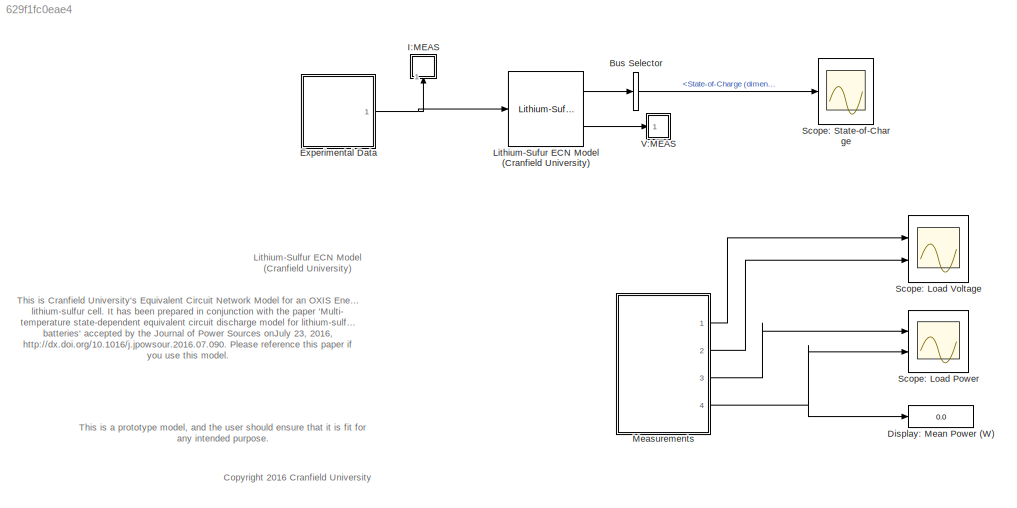
MODEL slx_629f1fc0eae4
KIND model
CONFIG AbsTol = auto
CONFIG FixedStep = Ts
CONFIG MaxStep = auto
CONFIG MinStep = auto
CONFIG PreLoadFcn = Ts = 1;\nload cudemo_LiS_ECN_Model_nedc_BOP_2A
CONFIG RelTol = 1e-3
CONFIG SampleTimeConstraint = Unconstrained
CONFIG Solver = ode3
CONFIG SolverMode = Auto
CONFIG SolverName = ode3
CONFIG StartTime = 0.0
CONFIG StopTime = STOP_TIME
BLOCK [BusSelector] Bus Selector
  OutputSignals = State-of-Charge (dimensionless)
  Ports = [1, 1]
BLOCK [Display] Display: Mean Power (W)
  Decimation = 1
  Ports = [1]
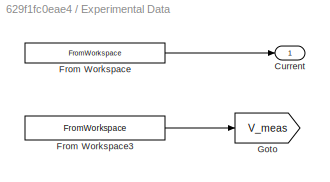
BLOCK [SubSystem] Experimental Data
  Ports = [0, 1]
  RequestExecContextInheritance = off
  Variant = off
BLOCK [Outport] Experimental Data/Current
  IconDisplay = Port number
  PortDimensions = 1
  SampleTime = Ts
BLOCK [FromWorkspace] Experimental Data/From Workspace
  OutputAfterFinalValue = Setting to zero
  SampleTime = Ts
  VariableName = I_nedc_BOP_2A
  ZeroCross = on
BLOCK [FromWorkspace] Experimental Data/From Workspace3
  OutputAfterFinalValue = Holding final value
  SampleTime = Ts
  VariableName = V_nedc_BOP_2A
  ZeroCross = on
BLOCK [Goto] Experimental Data/Goto
  GotoTag = V_meas
  TagVisibility = global
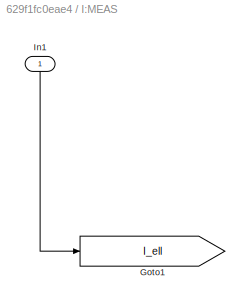
BLOCK [SubSystem] I:MEAS
  Ports = [1]
  RequestExecContextInheritance = off
  Variant = off
BLOCK [Goto] I:MEAS/Goto1
  GotoTag = I_ell
  TagVisibility = global
BLOCK [Inport] I:MEAS/In1
  IconDisplay = Port number
BLOCK [Reference] Lithium-Sufur ECN Model (Cranfield University)  REF=LiS_ECN_Model_lib/Lithium-Sufur ECN Model
(Cranfield University)
  AttributesFormatString = Temperature = %<TempDegC> deg C\nInitial SoC = %<InitialSoC>
  Ports = [1, 2]
  SourceBlock = LiS_ECN_Model_lib/Lithium-Sufur ECN Model\n(Cranfield University)
  SourceType = Lithium-Sulfur ECN Model (Cranfield University)
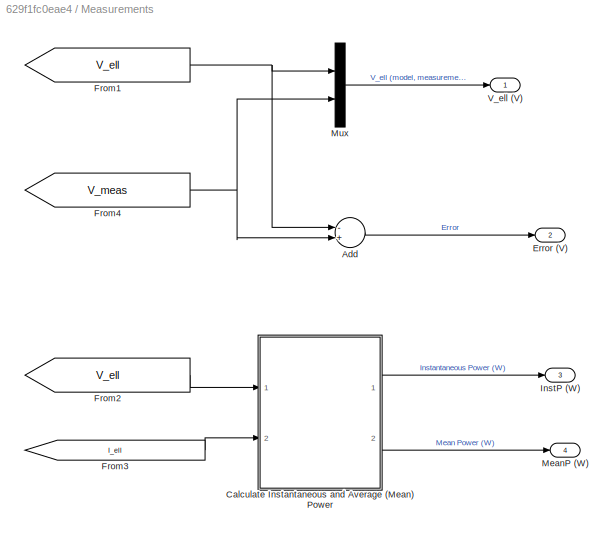
BLOCK [SubSystem] Measurements
  Ports = [0, 4]
  RequestExecContextInheritance = off
  Variant = off
BLOCK [Sum] Measurements/Add
  InputSameDT = off
  Inputs = -+
  OutDataTypeStr = Inherit: Inherit via internal rule
  Ports = [2, 1]
  SaturateOnIntegerOverflow = off
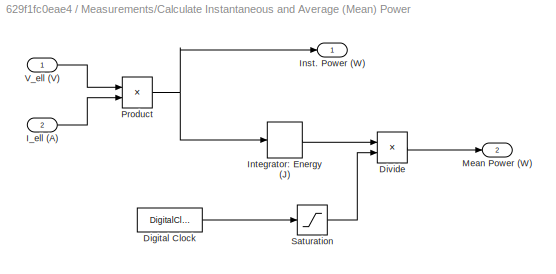
BLOCK [SubSystem] Measurements/Calculate Instantaneous and Average (Mean) Power
  Ports = [2, 2]
  RequestExecContextInheritance = off
  Variant = off
BLOCK [DigitalClock] Measurements/Calculate Instantaneous and Average (Mean) Power/Digital Clock
  SampleTime = Ts
BLOCK [Product] Measurements/Calculate Instantaneous and Average (Mean) Power/Divide
  InputSameDT = off
  Inputs = */
  OutDataTypeStr = Inherit: Inherit via internal rule
  Ports = [2, 1]
  RndMeth = Floor
  SaturateOnIntegerOverflow = off
BLOCK [Inport] Measurements/Calculate Instantaneous and Average (Mean) Power/I_ell (A)
  IconDisplay = Port number
  Port = 2
  PortDimensions = 1
  SampleTime = Ts
BLOCK [Outport] Measurements/Calculate Instantaneous and Average (Mean) Power/Inst. Power (W)
  IconDisplay = Port number
BLOCK [DiscreteIntegrator] Measurements/Calculate Instantaneous and Average (Mean) Power/Integrator: Energy (J)
  ICPrevOutput = DiscIntNeverNeededParam
  ICPrevScaledInput = DiscIntNeverNeededParam
  InitialConditionSetting = State (most efficient)
  Ports = [1, 1]
  SampleTime = Ts
BLOCK [Outport] Measurements/Calculate Instantaneous and Average (Mean) Power/Mean Power (W)
  IconDisplay = Port number
  Port = 2
BLOCK [Product] Measurements/Calculate Instantaneous and Average (Mean) Power/Product
  InputSameDT = off
  OutDataTypeStr = Inherit: Inherit via internal rule
  Ports = [2, 1]
  RndMeth = Floor
  SaturateOnIntegerOverflow = off
BLOCK [Saturate] Measurements/Calculate Instantaneous and Average (Mean) Power/Saturation
  InputPortMap = u0
  LowerLimit = Ts
  Ports = [1, 1]
  UpperLimit = inf
BLOCK [Inport] Measurements/Calculate Instantaneous and Average (Mean) Power/V_ell (V)
  IconDisplay = Port number
  PortDimensions = 1
  SampleTime = Ts
BLOCK [Outport] Measurements/Error (V)
  IconDisplay = Port number
  Port = 2
BLOCK [From] Measurements/From1
  GotoTag = V_ell
  TagVisibility = global
BLOCK [From] Measurements/From2
  GotoTag = V_ell
  TagVisibility = global
BLOCK [From] Measurements/From3
  GotoTag = I_ell
  TagVisibility = global
BLOCK [From] Measurements/From4
  GotoTag = V_meas
  TagVisibility = global
BLOCK [Outport] Measurements/InstP (W)
  IconDisplay = Port number
  Port = 3
BLOCK [Outport] Measurements/MeanP (W)
  IconDisplay = Port number
  Port = 4
BLOCK [Mux] Measurements/Mux
  DisplayOption = bar
  Inputs = 2
  Ports = [2, 1]
BLOCK [Outport] Measurements/V_ell (V)
  IconDisplay = Port number
BLOCK [Scope] Scope: Load Power
  NumInputPorts = 2
  Ports = [2]
  ScopeSpecificationString = Simulink.scopes.TimeScopeBlockCfg('CurrentConfiguration', extmgr.ConfigurationSet(extmgr.Configuration('Core','General UI',true,'FigureColor',[0.941176470588235 0.941176470588235 0.941176470588235]),extmgr.Configuration('Core','Source UI',true),extmgr.Configuration('Sources','WiredSimulink',true,'DataLoggingVariableName','ScopeData3','DataLoggingSaveFormat','StructureWithTime','DataLoggingDecimati...<+2823ch>
BLOCK [Scope] Scope: Load Voltage
  NumInputPorts = 2
  Ports = [2]
  ScopeSpecificationString = Simulink.scopes.TimeScopeBlockCfg('CurrentConfiguration', extmgr.ConfigurationSet(extmgr.Configuration('Core','General UI',true,'FigureColor',[0.941176470588235 0.941176470588235 0.941176470588235]),extmgr.Configuration('Core','Source UI',true),extmgr.Configuration('Sources','WiredSimulink',true,'DataLoggingVariableName','ScopeData1','DataLoggingSaveFormat','StructureWithTime','DataLoggingDecimati...<+2873ch>
BLOCK [Scope] Scope: State-of-Charge
  Ports = [1]
  ScopeSpecificationString = Simulink.scopes.TimeScopeBlockCfg('CurrentConfiguration', extmgr.ConfigurationSet(extmgr.Configuration('Core','General UI',true,'FigureColor',[0.941176470588235 0.941176470588235 0.941176470588235]),extmgr.Configuration('Core','Source UI',true),extmgr.Configuration('Sources','WiredSimulink',true,'DataLoggingVariableName','ScopeData2','DataLoggingSaveFormat','StructureWithTime','DataLoggingMaxPoint...<+2129ch>
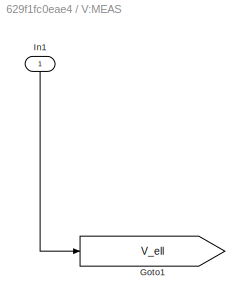
BLOCK [SubSystem] V:MEAS
  Ports = [1]
  RequestExecContextInheritance = off
  Variant = off
BLOCK [Goto] V:MEAS/Goto1
  GotoTag = V_ell
  TagVisibility = global
BLOCK [Inport] V:MEAS/In1
  IconDisplay = Port number
ANNOTATION (root): This is Cranfield University's Equivalent Circuit Network Model for an OXIS Energy lithium-sulfur cell. It has been prepared in conjunction with the paper 'Multi- temperature state-dependent equivalent circuit discharge model for lithium-sulfur batteries' accepted by the Journal of Power Sources onJuly 23, 2016, http://dx.doi.org/10.1016/j.jpowsour.2016.07.090. Please reference this paper if you u...<+103ch>
ANNOTATION (root): <copyright redacted>
ANNOTATION (root): Lithium-Sulfur ECN Model (Cranfield University)
ANNOTATION (root): This is a prototype model, and the user should ensure that it is fit for any intended purpose.
LINE Bus Selector:1 -> Scope: State-of-Charge:1
LINE Experimental Data/From Workspace3:1 -> Experimental Data/Goto:1
LINE Experimental Data/From Workspace:1 -> Experimental Data/Current:1
NET Experimental Data:1 -> I:MEAS:1, Lithium-Sufur ECN Model (Cranfield University):1
LINE I:MEAS/In1:1 -> I:MEAS/Goto1:1
LINE Lithium-Sufur ECN Model (Cranfield University):1 -> Bus Selector:1
LINE Lithium-Sufur ECN Model (Cranfield University):2 -> V:MEAS:1
LINE Measurements/Add:1 -> Measurements/Error (V):1
LINE Measurements/Calculate Instantaneous and Average (Mean) Power/Digital Clock:1 -> Measurements/Calculate Instantaneous and Average (Mean) Power/Saturation:1
LINE Measurements/Calculate Instantaneous and Average (Mean) Power/Divide:1 -> Measurements/Calculate Instantaneous and Average (Mean) Power/Mean Power (W):1
LINE Measurements/Calculate Instantaneous and Average (Mean) Power/I_ell (A):1 -> Measurements/Calculate Instantaneous and Average (Mean) Power/Product:2
LINE Measurements/Calculate Instantaneous and Average (Mean) Power/Integrator: Energy (J):1 -> Measurements/Calculate Instantaneous and Average (Mean) Power/Divide:1
NET Measurements/Calculate Instantaneous and Average (Mean) Power/Product:1 -> Measurements/Calculate Instantaneous and Average (Mean) Power/Inst. Power (W):1, Measurements/Calculate Instantaneous and Average (Mean) Power/Integrator: Energy (J):1
LINE Measurements/Calculate Instantaneous and Average (Mean) Power/Saturation:1 -> Measurements/Calculate Instantaneous and Average (Mean) Power/Divide:2
LINE Measurements/Calculate Instantaneous and Average (Mean) Power/V_ell (V):1 -> Measurements/Calculate Instantaneous and Average (Mean) Power/Product:1
LINE Measurements/Calculate Instantaneous and Average (Mean) Power:1 -> Measurements/InstP (W):1
LINE Measurements/Calculate Instantaneous and Average (Mean) Power:2 -> Measurements/MeanP (W):1
NET Measurements/From1:1 -> Measurements/Add:1, Measurements/Mux:1
LINE Measurements/From2:1 -> Measurements/Calculate Instantaneous and Average (Mean) Power:1
LINE Measurements/From3:1 -> Measurements/Calculate Instantaneous and Average (Mean) Power:2
NET Measurements/From4:1 -> Measurements/Add:2, Measurements/Mux:2
LINE Measurements/Mux:1 -> Measurements/V_ell (V):1
LINE Measurements:1 -> Scope: Load Voltage:1
LINE Measurements:2 -> Scope: Load Voltage:2
LINE Measurements:3 -> Scope: Load Power:1
NET Measurements:4 -> Display: Mean Power (W):1, Scope: Load Power:2
LINE V:MEAS/In1:1 -> V:MEAS/Goto1:1
note: NET lines group one-source signal fan-out (src -> all destinations, sorted); 1:1 wires keep LINE
